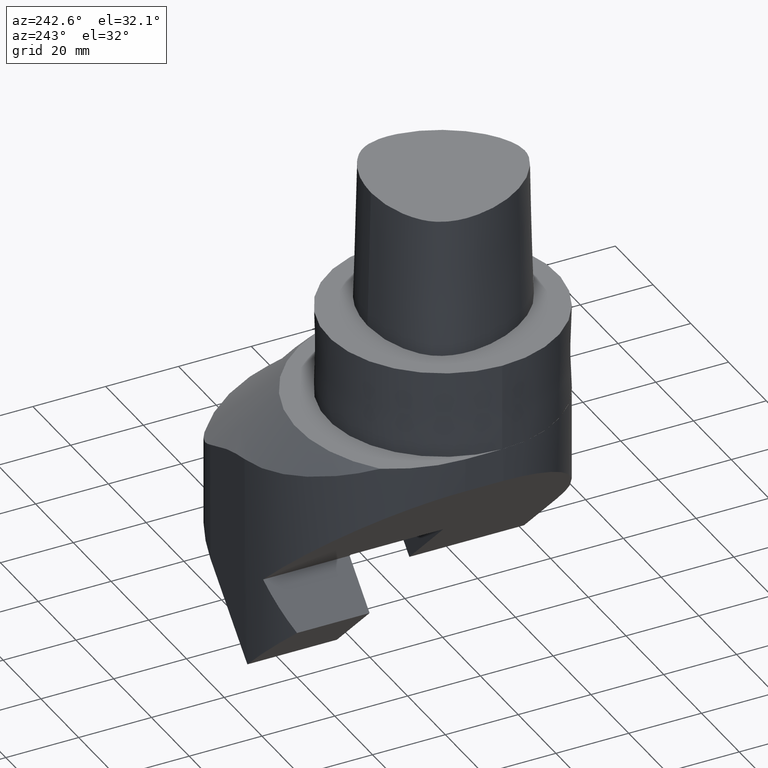
[diagram: clean part render]
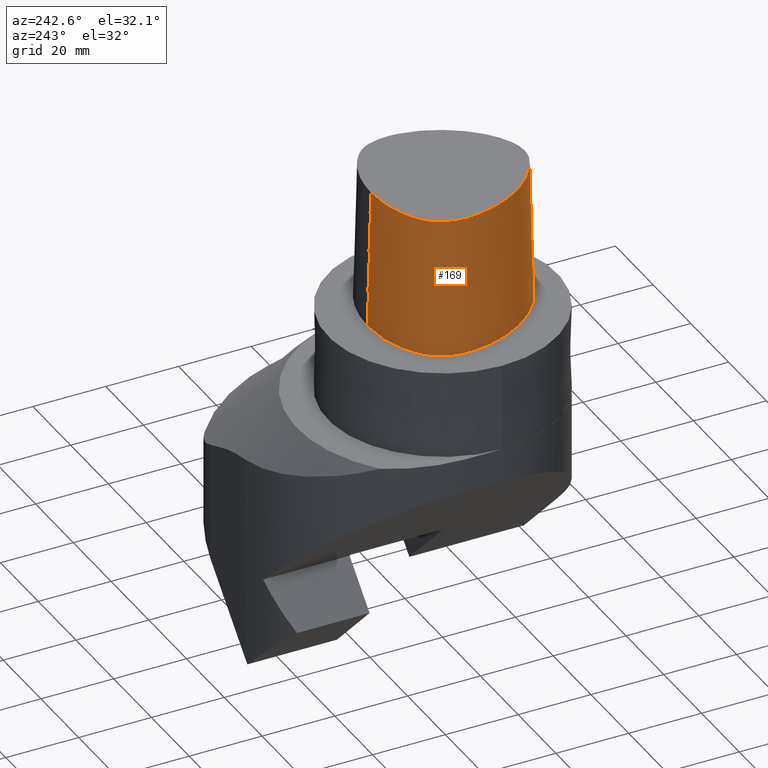
[diagram: same view with one face highlighted and labeled with its STEP entity id]
A machine part, auxiliary view. The second image highlights one B-rep face of the part: STEP entity #169.
In plain terms, the highlighted face is a freeform B-spline surface patch.
Its self-contained STEP definition (entity closure, byte-faithful):
#169=ADVANCED_FACE('Unnamed[1]',(#444),#445,.T.);
#171=EDGE_CURVE('Unnamed[1]',#447,#448,#449,.T.);
#307=EDGE_CURVE('Unnamed[1]',#588,#578,#631,.T.);
#336=EDGE_CURVE('Unnamed[1]',#448,#578,#666,.T.);
#368=EDGE_CURVE('Unnamed[1]',#447,#588,#700,.T.);
#444=FACE_OUTER_BOUND('',#1733,.T.);
#445=B_SPLINE_SURFACE_WITH_KNOTS('',3,3,((#1734,#1735,#1736,#1737),(#1738,#1739,#1740,#1741),(#1742,#1743,#1744,#1745),(#1746,#1747,#1748,#1749),(#1750,#1751,#1752,#1753),(#1754,#1755,#1756,#1757),(#1758,#1759,#1760,#1761),(#1762,#1763,#1764,#1765),(#1766,#1767,#1768,#1769),(#1770,#1771,#1772,#1773),(#1774,#1775,#1776,#1777),(#1778,#1779,#1780,#1781),(#1782,#1783,#1784,#1785),(#1786,#1787,#1788,#1789),(#1790,#1791,#1792,#1793),(#1794,#1795,#1796,#1797),(#1798,#1799,#1800,#1801),(#1802,#1803,#1804,#1805)),.UNSPECIFIED.,.F.,.F.,.F.,(4,1,1,1,1,1,1,1,1,2,1,1,1,1,4),(4,4),(-6.6151339308743,-6.20168806019465,-5.78824218951501,-5.37479631883537,-4.96135044815572,-4.13445870679644,-3.30756696543715,-2.89412109475751,-2.48067522407786,-2.06722935339822,-1.65378348271857,-1.24033761203893,-0.826891741359287,-0.413445870679644,0.0),(-3.8,0.0),.UNSPECIFIED.);
#447=VERTEX_POINT('',#1808);
#448=VERTEX_POINT('',#1809);
#449=B_SPLINE_CURVE_WITH_KNOTS('',3,(#1810,#1811,#1812,#1813,#1814,#1815,#1816,#1817,#1818,#1819,#1820,#1821,#1822,#1823,#1824,#1825),.UNSPECIFIED.,.F.,.F.,(4,1,1,1,1,1,1,1,1,1,1,1,1,4),(0.0,0.447924670568964,0.9388024242536,1.50591409090711,2.07314340012323,2.72424957442464,3.2253501842849,3.80982102049476,4.34867996267067,4.85900173381144,5.37972031856977,6.03459825488646,6.61113557741484,6.61513393087395),.UNSPECIFIED.);
#578=VERTEX_POINT('',#2114);
#588=VERTEX_POINT('',#2159);
#631=B_SPLINE_CURVE_WITH_KNOTS('',3,(#4778,#4779,#4780,#4781,#4782,#4783,#4784,#4785,#4786,#4787,#4788,#4789,#4790,#4791,#4792,#4793,#4794,#4795,#4796,#4797,#4798,#4799,#4800,#4801,#4802,#4803,#4804,#4805,#4806,#4807),.UNSPECIFIED.,.F.,.F.,(4,2,2,2,2,2,2,2,2,2,2,2,2,2,4),(0.0,0.576808184119594,1.15361636823919,1.43293031700624,1.7122442657733,1.99155821454036,2.27087216330741,2.85949822796588,3.15381126029511,3.44812429262434,4.36563722999232,5.28315016736029,5.8130055067864,6.21406971883035,6.6151339308743),.UNSPECIFIED.);
#666=LINE('',#4875,#4876);
#700=LINE('',#5583,#5584);
#1733=EDGE_LOOP('',(#5641,#5642,#5643,#5644));
#1734=CARTESIAN_POINT('',(0.038736923393866,-22.5191997536361,38.0));
#1735=CARTESIAN_POINT('',(0.04035580478973,-22.8358410047159,25.3333333333066));
#1736=CARTESIAN_POINT('',(0.041974686185626,-23.1524822558133,12.6666666666934));
#1737=CARTESIAN_POINT('',(0.04359356758149,-23.4691235068931,0.0));
#1738=CARTESIAN_POINT('',(-1.33786123484754,-22.5261650259856,38.0));
#1739=CARTESIAN_POINT('',(-1.38240731367927,-22.8430399310626,25.3333333333066));
#1740=CARTESIAN_POINT('',(-1.42695339249092,-23.1599147815484,12.6666666666934));
#1741=CARTESIAN_POINT('',(-1.4714994713963,-23.4767895315797,2.71050543121376E-020));
#1742=CARTESIAN_POINT('',(-4.08909358431842,-21.9268839879558,38.0));
#1743=CARTESIAN_POINT('',(-4.20580731135515,-22.2249725500078,25.3333333333066));
#1744=CARTESIAN_POINT('',(-4.32252104640446,-22.5230611651922,12.6666666666934));
#1745=CARTESIAN_POINT('',(-4.43923476371401,-22.821149804767,0.0));
#1746=CARTESIAN_POINT('',(-7.8333083619947,-19.9973514861616,38.0));
#1747=CARTESIAN_POINT('',(-8.00568301809614,-20.2649260859405,25.3333333333066));
#1748=CARTESIAN_POINT('',(-8.1780576640789,-20.532500564315,12.6666666666934));
#1749=CARTESIAN_POINT('',(-8.35043230079961,-20.8000751253325,0.0));
#1750=CARTESIAN_POINT('',(-11.1035071147626,-17.450554957873,38.0));
#1751=CARTESIAN_POINT('',(-11.3173048160562,-17.6855739222454,25.3333333333066));
#1752=CARTESIAN_POINT('',(-11.5311025116181,-17.9205928617968,12.6666666666934));
#1753=CARTESIAN_POINT('',(-11.744900222602,-18.1556117874078,0.0));
#1754=CARTESIAN_POINT('',(-14.9379535189057,-13.461132049697,38.0));
#1755=CARTESIAN_POINT('',(-15.191622410671,-13.6542981711372,25.3333333333066));
#1756=CARTESIAN_POINT('',(-15.4452913389853,-13.8474645327131,12.6666666666934));
#1757=CARTESIAN_POINT('',(-15.6989602501314,-14.0406306929147,0.0));
#1758=CARTESIAN_POINT('',(-18.6681263017223,-7.59391757463204,38.0));
#1759=CARTESIAN_POINT('',(-18.9571800800711,-7.73136168081928,25.3333333333066));
#1760=CARTESIAN_POINT('',(-19.2462337287194,-7.86880572399774,12.6666666666934));
#1761=CARTESIAN_POINT('',(-19.5352875070682,-8.00624990770787,0.0));
#1762=CARTESIAN_POINT('',(-20.7857899858339,-0.952862819790525,38.0));
#1763=CARTESIAN_POINT('',(-21.0973808305434,-1.02218087467418,25.3333333333066));
#1764=CARTESIAN_POINT('',(-21.408971677436,-1.09149899580772,12.6666666666934));
#1765=CARTESIAN_POINT('',(-21.7205626190491,-1.16081708945282,-2.71050543121376E-020));
#1766=CARTESIAN_POINT('',(-21.2911760556836,4.5469215763113,38.0));
#1767=CARTESIAN_POINT('',(-21.610337904926,4.54783292082248,25.3333333333066));
#1768=CARTESIAN_POINT('',(-21.9294998290918,4.54874426225691,12.6666666666934));
#1769=CARTESIAN_POINT('',(-22.2486616783342,4.54965558738736,0.0));
#1770=CARTESIAN_POINT('',(-20.7345309521958,8.74909381391006,38.0));
#1771=CARTESIAN_POINT('',(-21.0445680426217,8.83349432450556,25.3333333333066));
#1772=CARTESIAN_POINT('',(-21.3546050933631,8.91789488065068,12.6666666666934));
#1773=CARTESIAN_POINT('',(-21.6646421256468,9.00229539124618,0.0));
#1774=CARTESIAN_POINT('',(-19.5531512296439,11.3174844040833,38.0));
#1775=CARTESIAN_POINT('',(-19.8336219699984,11.4710077674213,25.3333333333066));
#1776=CARTESIAN_POINT('',(-20.1140927680763,11.6245311337623,12.6666666666934));
#1777=CARTESIAN_POINT('',(-20.3945635471922,11.7780544971003,0.0));
#1778=CARTESIAN_POINT('',(-17.9100913688793,13.524027510437,38.0));
#1779=CARTESIAN_POINT('',(-18.1375785458768,13.7487051053655,25.3333333333066));
#1780=CARTESIAN_POINT('',(-18.365065665211,13.9733826973296,12.6666666666934));
#1781=CARTESIAN_POINT('',(-18.5925528034471,14.1980602922581,-2.71050543121376E-020));
#1782=CARTESIAN_POINT('',(-15.7996349656398,15.3762170634413,38.0));
#1783=CARTESIAN_POINT('',(-15.9739761051783,15.6434029846179,25.3333333333066));
#1784=CARTESIAN_POINT('',(-16.1483172726872,15.9105889315134,12.6666666666934));
#1785=CARTESIAN_POINT('',(-16.3226584122258,16.1777748720707,2.71050543121376E-020));
#1786=CARTESIAN_POINT('',(-12.1175640002064,17.3825162484012,38.0));
#1787=CARTESIAN_POINT('',(-12.2475895903055,17.6724842099619,25.3333333333066));
#1788=CARTESIAN_POINT('',(-12.3776152070492,17.9624521925696,12.6666666666934));
#1789=CARTESIAN_POINT('',(-12.5076407874579,18.2524201541303,0.0));
#1790=CARTESIAN_POINT('',(-8.21761151654222,18.7588585989994,38.0));
#1791=CARTESIAN_POINT('',(-8.30099497910627,19.0656105427881,25.3333333333066));
#1792=CARTESIAN_POINT('',(-8.38437843913309,19.3723624535439,12.6666666666934));
#1793=CARTESIAN_POINT('',(-8.46776192107786,19.679114377952,0.0));
#1794=CARTESIAN_POINT('',(-4.13466093881225,19.5396850837055,38.0));
#1795=CARTESIAN_POINT('',(-4.16658562115465,19.8557172636973,25.3333333333066));
#1796=CARTESIAN_POINT('',(-4.19851029939059,20.1717494367229,12.6666666666934));
#1797=CARTESIAN_POINT('',(-4.23043497193604,20.487781597334,0.0));
#1798=CARTESIAN_POINT('',(-1.37917220403684,19.6638560588908,38.0));
#1799=CARTESIAN_POINT('',(-1.39382511685176,19.98016223565,25.3333333333066));
#1800=CARTESIAN_POINT('',(-1.40847802945569,20.296468399885,12.6666666666934));
#1801=CARTESIAN_POINT('',(-1.42313094248379,20.6127745766442,0.0));
#1802=CARTESIAN_POINT('',(-0.001218547003662,19.7276821925089,38.0));
#1803=CARTESIAN_POINT('',(-0.015869696232855,20.043988446791,25.3333333333066));
#1804=CARTESIAN_POINT('',(-0.030520845462092,20.3602947010464,12.6666666666934));
#1805=CARTESIAN_POINT('',(-0.045171994691285,20.6766009553285,0.0));
#1808=CARTESIAN_POINT('',(-0.001218547003662,19.7276821925089,38.0));
#1809=CARTESIAN_POINT('',(0.038736923393866,-22.5191997536361,38.0));
#1810=CARTESIAN_POINT('',(-0.001218547003662,19.7276821925089,38.0));
#1811=CARTESIAN_POINT('',(-1.49408492138443,19.6585333605309,38.0));
#1812=CARTESIAN_POINT('',(-4.62297391420352,19.513604770166,38.0));
#1813=CARTESIAN_POINT('',(-9.56160616752212,18.4291575730197,38.0));
#1814=CARTESIAN_POINT('',(-14.5427684976927,16.2697452580488,38.0));
#1815=CARTESIAN_POINT('',(-19.4315563551602,12.5302108980807,38.0));
#1816=CARTESIAN_POINT('',(-21.306358833612,6.76352894547076,38.0));
#1817=CARTESIAN_POINT('',(-21.0724946936277,0.957075236984038,38.0));
#1818=CARTESIAN_POINT('',(-19.7876470880144,-4.34628503581652,38.0));
#1819=CARTESIAN_POINT('',(-17.5396999600095,-9.33314444653089,38.0));
#1820=CARTESIAN_POINT('',(-14.645447733857,-13.7185760345629,38.0));
#1821=CARTESIAN_POINT('',(-10.7996726536643,-17.856257282137,38.0));
#1822=CARTESIAN_POINT('',(-6.00479510196376,-21.2687382067675,38.0));
#1823=CARTESIAN_POINT('',(-1.90747171908525,-22.5250621415864,38.0));
#1824=CARTESIAN_POINT('',(0.025424107066464,-22.5192678176378,38.0));
#1825=CARTESIAN_POINT('',(0.038736923394311,-22.519199753636,38.0));
#2114=CARTESIAN_POINT('',(0.04359356758149,-23.4691235068931,0.0));
#2159=CARTESIAN_POINT('',(-0.045171994691285,20.6766009553285,0.0));
#4778=CARTESIAN_POINT('',(-0.045171994691285,20.6766009553285,0.0));
#4779=CARTESIAN_POINT('',(-1.96758797023018,20.5875555983123,0.0));
#4780=CARTESIAN_POINT('',(-3.95342611673668,20.4850284912479,-1.42108276101477E-014));
#4781=CARTESIAN_POINT('',(-7.86342529995983,19.7967909190733,7.105427357601E-015));
#4782=CARTESIAN_POINT('',(-9.79439573378639,19.2503426360022,-1.4210854715202E-014));
#4783=CARTESIAN_POINT('',(-12.5351742003408,18.1332577991903,-2.71050543121376E-020));
#4784=CARTESIAN_POINT('',(-13.4106560097683,17.7191970550452,0.0));
#4785=CARTESIAN_POINT('',(-15.1227536857037,16.7802221286297,7.10540025254669E-015));
#4786=CARTESIAN_POINT('',(-15.9615364355591,16.2592643918937,-2.71050543121376E-020));
#4787=CARTESIAN_POINT('',(-17.5597683566648,15.0665385774434,0.0));
#4788=CARTESIAN_POINT('',(-18.3143568572283,14.3955246024635,-7.105427357601E-015));
#4789=CARTESIAN_POINT('',(-19.638502795217,12.8665014798265,-7.105427357601E-015));
#4790=CARTESIAN_POINT('',(-20.1979602542332,11.999774776593,2.71050543121376E-020));
#4791=CARTESIAN_POINT('',(-21.5622718142072,9.15853750369237,-2.71050543121376E-020));
#4792=CARTESIAN_POINT('',(-21.9947483544612,7.02185767378744,0.0));
#4793=CARTESIAN_POINT('',(-22.1134563193034,3.90325125553384,0.0));
#4794=CARTESIAN_POINT('',(-22.0668279345839,2.87928778574124,0.0));
#4795=CARTESIAN_POINT('',(-21.8551986681238,0.853042087412899,0.0));
#4796=CARTESIAN_POINT('',(-21.6926789478513,-0.149498515836233,-1.4210854715202E-014));
#4797=CARTESIAN_POINT('',(-20.816421377794,-4.23736740865811,1.4210854715202E-014));
#4798=CARTESIAN_POINT('',(-19.659579746308,-7.20863943907163,-1.4210854715202E-014));
#4799=CARTESIAN_POINT('',(-16.574666895304,-12.7137973313948,-2.71050543121376E-020));
#4800=CARTESIAN_POINT('',(-14.6473715787034,-15.2481179483411,-7.105427357601E-015));
#4801=CARTESIAN_POINT('',(-11.050022952355,-18.7018400427945,7.10540025254669E-015));
#4802=CARTESIAN_POINT('',(-9.61826302632357,-19.8571497088389,0.0));
#4803=CARTESIAN_POINT('',(-6.85491632421896,-21.5712784212,-1.4210854715202E-014));
#4804=CARTESIAN_POINT('',(-5.58035985461548,-22.2135461215161,0.0));
#4805=CARTESIAN_POINT('',(-2.86743329636734,-23.1704091567902,0.0));
#4806=CARTESIAN_POINT('',(-1.42611943322398,-23.4766376606116,2.71050543121376E-020));
#4807=CARTESIAN_POINT('',(0.04359356758149,-23.4691235068931,0.0));
#4875=CARTESIAN_POINT('',(0.038736923393866,-22.5191997536361,38.0));
#4876=VECTOR('',#5888,38.0118715498723);
#5583=CARTESIAN_POINT('',(-0.001218547003662,19.7276821925089,38.0));
#5584=VECTOR('',#5922,38.0118715498723);
#5641=ORIENTED_EDGE('',*,*,#307,.T.);
#5642=ORIENTED_EDGE('',*,*,#336,.F.);
#5643=ORIENTED_EDGE('',*,*,#171,.F.);
#5644=ORIENTED_EDGE('',*,*,#368,.T.);
#5888=DIRECTION('',(0.000127766510556,-0.024990186342461,-0.999687688361864));
#5922=DIRECTION('',(-0.001156308434589,0.02496374748543,-0.999687688361864));